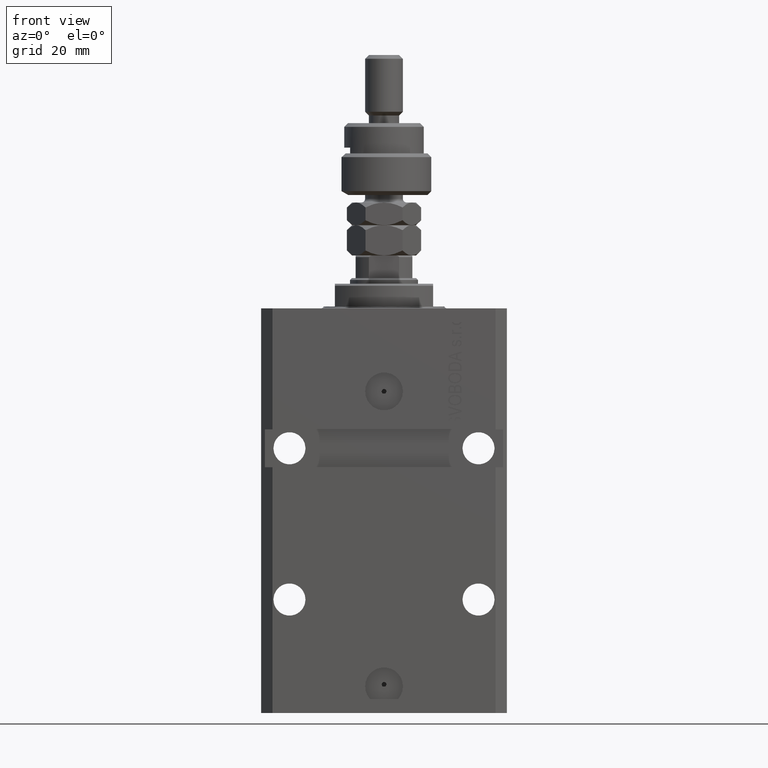
[diagram: clean part render]
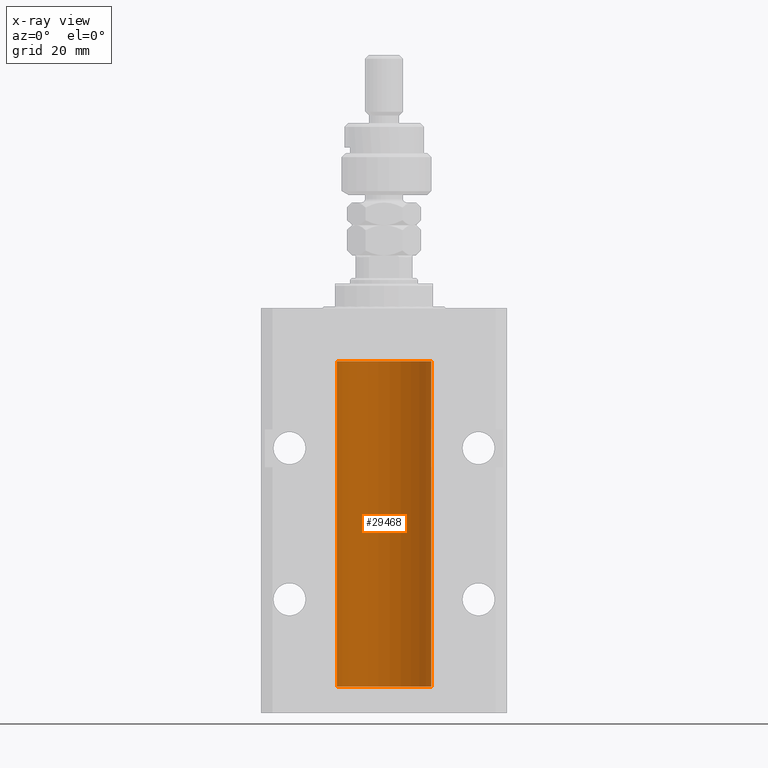
[diagram: x-ray — body ghosted, one internal face saturated and labeled with its STEP entity id]
A machine part, front view, then the same camera in x-ray: the body is ghosted and one INTERNAL B-rep face — a face not visible from any outside direction — is saturated and labeled: STEP entity #29468.
In plain terms, the highlighted cylindrical surface (partial cylindrical patch) has radius 12.5 mm, axis along (0, 0, 1).
Its self-contained STEP definition (entity closure, byte-faithful):
#97 = CARTESIAN_POINT ( 'NONE',  ( -12.50000000000000000, 1.530808498934191521E-15, -13.99999999999999822 ) ) ;
#216 = CARTESIAN_POINT ( 'NONE',  ( -12.50000000000000000, 1.530808498934191521E-15, -100.0999999999999943 ) ) ;
#808 = ORIENTED_EDGE ( 'NONE', *, *, #15123, .F. ) ;
#974 = CARTESIAN_POINT ( 'NONE',  ( -12.50000000000000000, 1.530808498934191521E-15, -100.0999999999999943 ) ) ;
#1165 = CARTESIAN_POINT ( 'NONE',  ( 0.000000000000000000, 0.000000000000000000, -13.99999999999999822 ) ) ;
#1405 = LINE ( 'NONE', #24911, #48526 ) ;
#1887 = VECTOR ( 'NONE', #5059, 1000.000000000000000 ) ;
#2334 = CARTESIAN_POINT ( 'NONE',  ( -12.49999999999999289, 0.1631761135151241215, -22.62499999999984013 ) ) ;
#2489 = CARTESIAN_POINT ( 'NONE',  ( 0.000000000000000000, 0.000000000000000000, -100.0999999999999943 ) ) ;
#2591 = CARTESIAN_POINT ( 'NONE',  ( -12.49422197749724006, 0.3843754434364375916, -21.50047099568095277 ) ) ;
#3012 = CARTESIAN_POINT ( 'NONE',  ( 12.50000000000000000, 0.000000000000000000, -100.0999999999999943 ) ) ;
#3799 = CARTESIAN_POINT ( 'NONE',  ( -12.49915784441387068, 0.1636601911727894876, -94.39126818989429069 ) ) ;
#4565 = CARTESIAN_POINT ( 'NONE',  ( -12.50000000000000000, -1.522152011595579853E-14, -94.37500000000000000 ) ) ;
#5059 = DIRECTION ( 'NONE',  ( -0.000000000000000000, -0.000000000000000000, 1.000000000000000000 ) ) ;
#5708 = CARTESIAN_POINT ( 'NONE',  ( 0.000000000000000000, 0.000000000000000000, -100.0999999999999943 ) ) ;
#6185 = CARTESIAN_POINT ( 'NONE',  ( -12.48436376893640443, 0.6250290278979917513, -22.08132082824473486 ) ) ;
#6454 = DIRECTION ( 'NONE',  ( -0.000000000000000000, -0.000000000000000000, 1.000000000000000000 ) ) ;
#7386 = CARTESIAN_POINT ( 'NONE',  ( -12.49999999999999112, 0.1631761135151224562, -95.62499999999980105 ) ) ;
#8180 = EDGE_CURVE ( 'NONE', #35251, #22896, #40589, .T. ) ;
#9091 = DIRECTION ( 'NONE',  ( 1.000000000000000000, 0.000000000000000000, 0.000000000000000000 ) ) ;
#10085 = DIRECTION ( 'NONE',  ( -0.000000000000000000, -0.000000000000000000, 1.000000000000000000 ) ) ;
#10168 = VECTOR ( 'NONE', #20902, 1000.000000000000000 ) ;
#10673 = EDGE_CURVE ( 'NONE', #35251, #48048, #30377, .T. ) ;
#11758 = AXIS2_PLACEMENT_3D ( 'NONE', #2489, #26001, #45927 ) ;
#13360 = CARTESIAN_POINT ( 'NONE',  ( -12.50000000000017941, 3.883381646606358354E-13, -22.62500000000358824 ) ) ;
#13390 = CYLINDRICAL_SURFACE ( 'NONE', #33192, 12.50000000000000000 ) ;
#13830 = VERTEX_POINT ( 'NONE', #3012 ) ;
#13859 = CARTESIAN_POINT ( 'NONE',  ( -12.48436813453758454, 0.6249418250771192618, -21.83668996798922635 ) ) ;
#14116 = CARTESIAN_POINT ( 'NONE',  ( -12.49625855304193678, 0.3150454781038042329, -21.45402800297484802 ) ) ;
#15123 = EDGE_CURVE ( 'NONE', #38631, #17836, #1405, .T. ) ;
#15829 = CARTESIAN_POINT ( 'NONE',  ( -12.49422197749723829, 0.3843754434364257122, -94.50047099568094211 ) ) ;
#15943 = EDGE_CURVE ( 'NONE', #18497, #48048, #48568, .T. ) ;
#16265 = DIRECTION ( 'NONE',  ( 0.000000000000000000, 0.000000000000000000, 1.000000000000000000 ) ) ;
#16791 = AXIS2_PLACEMENT_3D ( 'NONE', #1165, #16265, #9091 ) ;
#16974 = CARTESIAN_POINT ( 'NONE',  ( -12.50000000000017941, 3.883381646606358354E-13, -22.62500000000358824 ) ) ;
#17836 = VERTEX_POINT ( 'NONE', #24688 ) ;
#18365 = CARTESIAN_POINT ( 'NONE',  ( -12.50000000000000000, 1.530808498934191521E-15, -100.0999999999999943 ) ) ;
#18497 = VERTEX_POINT ( 'NONE', #37312 ) ;
#19152 = CARTESIAN_POINT ( 'NONE',  ( -12.49625855304194033, 0.3150454781037993479, -94.45402800297488000 ) ) ;
#19401 = CARTESIAN_POINT ( 'NONE',  ( -12.48809959379011403, 0.5462151254764922026, -95.31461370481613926 ) ) ;
#20878 = B_SPLINE_CURVE_WITH_KNOTS ( 'NONE', 3,
 ( #4565, #46466, #3799, #19152, #15829, #38551, #34704, #31391, #39048, #19401, #39307, #27562, #7386, #43133 ),
 .UNSPECIFIED., .F., .F.,
 ( 4, 2, 2, 2, 2, 2, 4 ),
 ( 3.486178718436696769E-18, 0.0002442924852390829216, 0.0004885849704781623738, 0.0009771699409563507684, 0.001221462426195465403, 0.001465754911434580254, 0.001954339881912780900 ),
 .UNSPECIFIED. ) ;
#20902 = DIRECTION ( 'NONE',  ( -0.000000000000000000, -0.000000000000000000, 1.000000000000000000 ) ) ;
#21264 = CARTESIAN_POINT ( 'NONE',  ( -12.50000000000000000, 0.08260426088729219685, -21.37500000000000000 ) ) ;
#21551 = EDGE_CURVE ( 'NONE', #13830, #38631, #48438, .T. ) ;
#21767 = CARTESIAN_POINT ( 'NONE',  ( -12.48809959379011403, 0.5462151254764975317, -22.31461370481611795 ) ) ;
#22896 = VERTEX_POINT ( 'NONE', #16974 ) ;
#23090 = EDGE_CURVE ( 'NONE', #48394, #22896, #47215, .T. ) ;
#23194 = DIRECTION ( 'NONE',  ( -0.000000000000000000, -0.000000000000000000, 1.000000000000000000 ) ) ;
#24688 = CARTESIAN_POINT ( 'NONE',  ( -12.50000000000017941, 3.883381774819353300E-13, -95.62500000000359535 ) ) ;
#24911 = CARTESIAN_POINT ( 'NONE',  ( -12.50000000000000000, 1.530808498934191521E-15, -100.0999999999999943 ) ) ;
#25098 = CARTESIAN_POINT ( 'NONE',  ( -12.49631005746706336, 0.3253680783018528255, -22.55856740465392463 ) ) ;
#25600 = CARTESIAN_POINT ( 'NONE',  ( -12.48810268015257563, 0.5573155909661349217, -21.67347410093867666 ) ) ;
#25613 = CARTESIAN_POINT ( 'NONE',  ( -12.50000000000000000, -1.522152011595579853E-14, -94.37500000000000000 ) ) ;
#26001 = DIRECTION ( 'NONE',  ( 0.000000000000000000, 0.000000000000000000, 1.000000000000000000 ) ) ;
#27024 = LINE ( 'NONE', #46685, #48613 ) ;
#27544 = ORIENTED_EDGE ( 'NONE', *, *, #47851, .T. ) ;
#27562 = CARTESIAN_POINT ( 'NONE',  ( -12.49631005746706514, 0.3253680783018457756, -95.55856740465388555 ) ) ;
#29186 = CARTESIAN_POINT ( 'NONE',  ( -12.49915784441386890, 0.1636601911727947889, -21.39126818989430490 ) ) ;
#29215 = DIRECTION ( 'NONE',  ( 1.000000000000000000, 0.000000000000000000, 0.000000000000000000 ) ) ;
#29468 = ADVANCED_FACE ( 'NONE', ( #40708 ), #13390, .F. ) ;
#30105 = EDGE_CURVE ( 'NONE', #13830, #18497, #27024, .T. ) ;
#30377 = LINE ( 'NONE', #216, #1887 ) ;
#30858 = ORIENTED_EDGE ( 'NONE', *, *, #30105, .T. ) ;
#31391 = CARTESIAN_POINT ( 'NONE',  ( -12.48436376893640620, 0.6250290278979871994, -95.08132082824478459 ) ) ;
#31518 = CARTESIAN_POINT ( 'NONE',  ( -12.50000000000000000, -2.089494013101375120E-17, -21.37499999999999645 ) ) ;
#32602 = ORIENTED_EDGE ( 'NONE', *, *, #15943, .T. ) ;
#33003 = CARTESIAN_POINT ( 'NONE',  ( -12.48520330846397819, 0.6088355886774127201, -22.16325431852561323 ) ) ;
#33192 = AXIS2_PLACEMENT_3D ( 'NONE', #5708, #6454, #29215 ) ;
#34704 = CARTESIAN_POINT ( 'NONE',  ( -12.48436813453758631, 0.6249418250771134886, -94.83668996798924411 ) ) ;
#34854 = EDGE_LOOP ( 'NONE', ( #808, #40800, #30858, #32602, #47705, #44091, #39535, #27544 ) ) ;
#35251 = VERTEX_POINT ( 'NONE', #31518 ) ;
#37312 = CARTESIAN_POINT ( 'NONE',  ( 12.50000000000000000, 0.000000000000000000, -13.99999999999999822 ) ) ;
#37587 = CARTESIAN_POINT ( 'NONE',  ( -12.50000000000000000, -2.089494013101375120E-17, -21.37499999999999645 ) ) ;
#38551 = CARTESIAN_POINT ( 'NONE',  ( -12.48810268015257741, 0.5573155909661239304, -94.67347410093871929 ) ) ;
#38631 = VERTEX_POINT ( 'NONE', #18365 ) ;
#39048 = CARTESIAN_POINT ( 'NONE',  ( -12.48520330846397997, 0.6088355886774070580, -95.16325431852561678 ) ) ;
#39307 = CARTESIAN_POINT ( 'NONE',  ( -12.49011732893843529, 0.5003763274120199833, -95.38348111289285214 ) ) ;
#39535 = ORIENTED_EDGE ( 'NONE', *, *, #23090, .F. ) ;
#40589 = B_SPLINE_CURVE_WITH_KNOTS ( 'NONE', 3,
 ( #37587, #21264, #29186, #14116, #2591, #25600, #13859, #6185, #33003, #21767, #48585, #25098, #2334, #13360 ),
 .UNSPECIFIED., .F., .F.,
 ( 4, 2, 2, 2, 2, 2, 4 ),
 ( 2.030551168097110502E-20, 0.0002442924852390969078, 0.0004885849704781938157, 0.0009771699409563880650, 0.001221462426195485135, 0.001465754911434582423, 0.001954339881912776130 ),
 .UNSPECIFIED. ) ;
#40708 = FACE_OUTER_BOUND ( 'NONE', #34854, .T. ) ;
#40800 = ORIENTED_EDGE ( 'NONE', *, *, #21551, .F. ) ;
#43133 = CARTESIAN_POINT ( 'NONE',  ( -12.50000000000017941, 3.883381774819353300E-13, -95.62500000000359535 ) ) ;
#44091 = ORIENTED_EDGE ( 'NONE', *, *, #8180, .T. ) ;
#45927 = DIRECTION ( 'NONE',  ( 1.000000000000000000, 0.000000000000000000, 0.000000000000000000 ) ) ;
#46466 = CARTESIAN_POINT ( 'NONE',  ( -12.50000000000000000, 0.08260426088727994276, -94.37499999999998579 ) ) ;
#46685 = CARTESIAN_POINT ( 'NONE',  ( 12.50000000000000000, 0.000000000000000000, -100.0999999999999943 ) ) ;
#47215 = LINE ( 'NONE', #974, #10168 ) ;
#47705 = ORIENTED_EDGE ( 'NONE', *, *, #10673, .F. ) ;
#47851 = EDGE_CURVE ( 'NONE', #48394, #17836, #20878, .T. ) ;
#48048 = VERTEX_POINT ( 'NONE', #97 ) ;
#48394 = VERTEX_POINT ( 'NONE', #25613 ) ;
#48438 = CIRCLE ( 'NONE', #11758, 12.50000000000000000 ) ;
#48526 = VECTOR ( 'NONE', #10085, 1000.000000000000000 ) ;
#48568 = CIRCLE ( 'NONE', #16791, 12.50000000000000000 ) ;
#48585 = CARTESIAN_POINT ( 'NONE',  ( -12.49011732893843529, 0.5003763274120274218, -22.38348111289287701 ) ) ;
#48613 = VECTOR ( 'NONE', #23194, 1000.000000000000000 ) ;